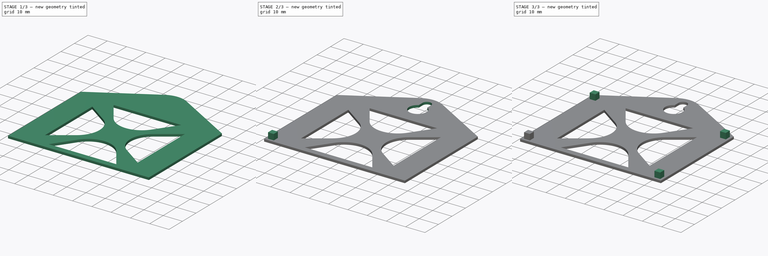
[diagram: build sequence overview — one tinted view per stage of 3, left to right]
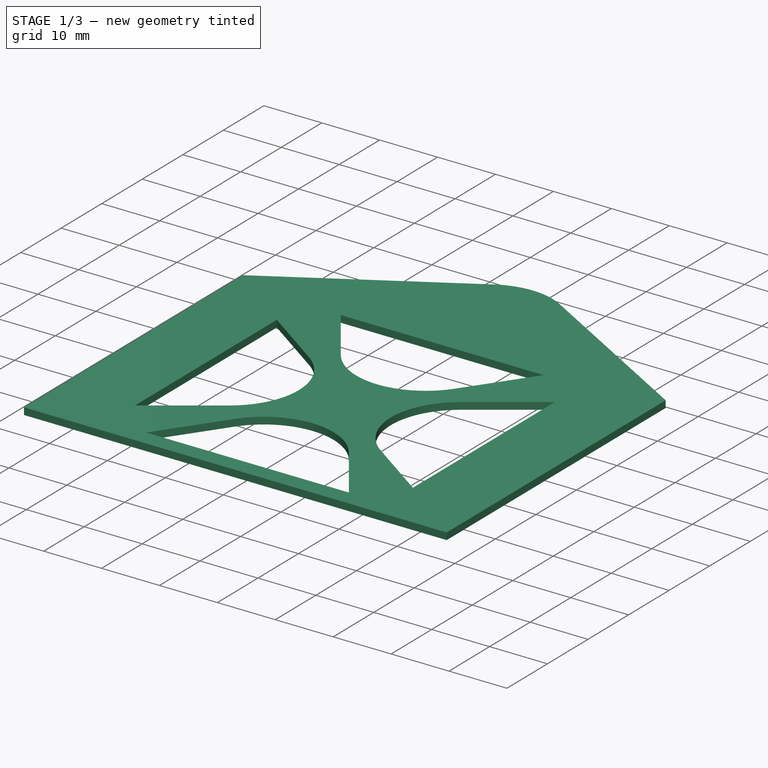
[diagram: stage 1 of 3 — iso view after this stage's code; geometry added in this stage tinted green]
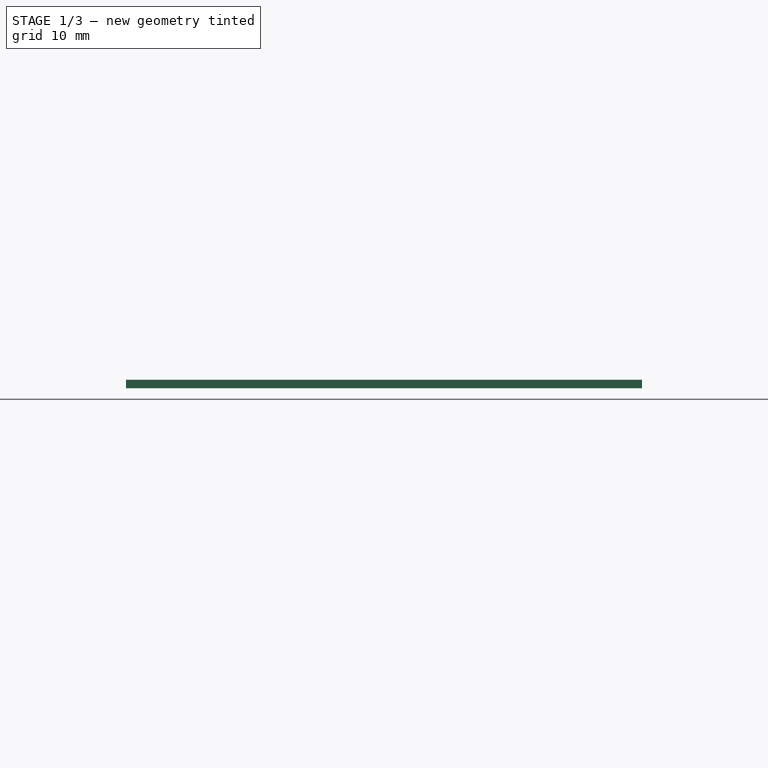
[diagram: stage 1 of 3 — front view after this stage's code; geometry added in this stage tinted green]
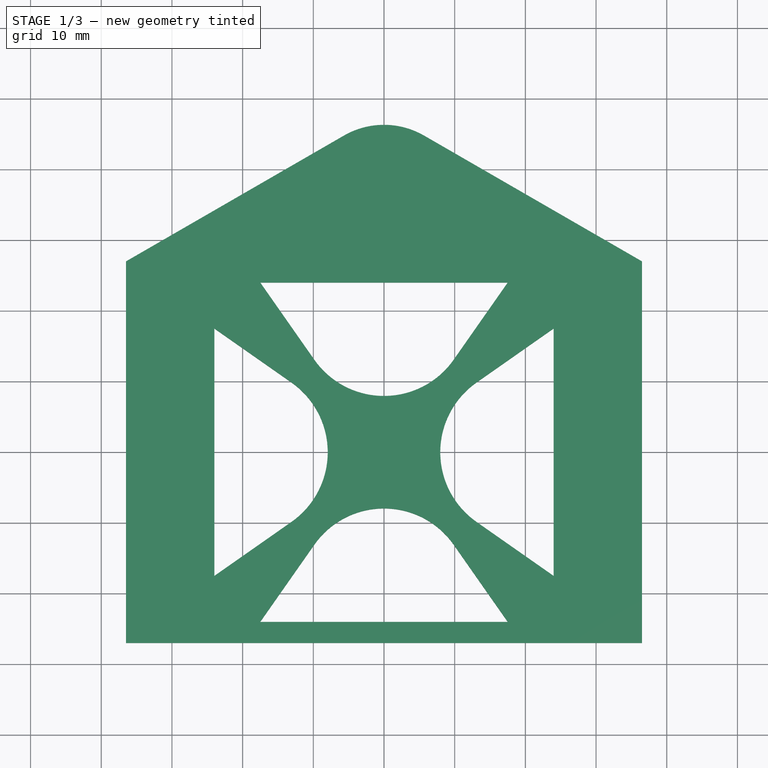
[diagram: stage 1 of 3 — top view after this stage's code; geometry added in this stage tinted green]
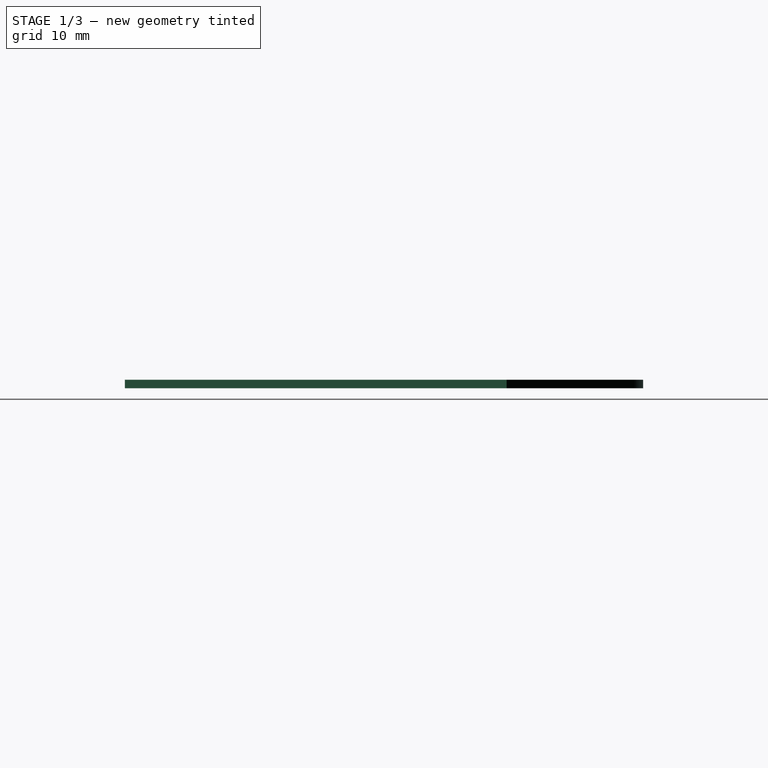
[diagram: stage 1 of 3 — right view after this stage's code; geometry added in this stage tinted green]
FCSTD DOCUMENT  (FreeCAD 0.18.3R)
Label: tapa_horno
License: All rights reserved
LicenseURL: http://en.wikipedia.org/wiki/All_rights_reserved
objects: Sketcher::SketchObject×4, PartDesign::Pad×2, PartDesign::Pocket×2, PartDesign::PolarPattern×2, PartDesign::Mirrored×2, PartDesign::Body×1
note: 17 computed .brp shape members not serialized (recipe doc carries the construction recipe); baked Part::Feature solids carry a one-line shape summary decoded from their .brp

FEATURE [Sketcher::SketchObject] Sketch
  MapMode = 5
  Support = -> [XY_Plane]
  sketch-geometry (7):
    g0: LineSegment [constr] StartX=-36.5 StartY=27 StartZ=0 EndX=36.5 EndY=27 EndZ=0
    g1: LineSegment StartX=36.5 StartY=27 StartZ=0 EndX=36.5 EndY=-27 EndZ=0
    g2: LineSegment StartX=36.5 StartY=-27 StartZ=0 EndX=-36.5 EndY=-27 EndZ=0
    g3: LineSegment StartX=-36.5 StartY=-27 StartZ=0 EndX=-36.5 EndY=27 EndZ=0
    g4: ArcOfCircle CenterX=0 CenterY=35 CenterZ=0 NormalX=0 NormalY=0 NormalZ=1 AngleXU=0 Radius=11.3218 StartAngle=1.0472 EndAngle=2.0944
    g5: LineSegment StartX=-36.5 StartY=27 StartZ=0 EndX=-5.6609 EndY=44.805 EndZ=0
    g6: LineSegment StartX=5.6609 StartY=44.805 StartZ=0 EndX=36.5 EndY=27 EndZ=0
  constraints (18):
    c: Coincident(g0,g1)
    c: Coincident(g1,g2)
    c: Coincident(g2,g3)
    c: Coincident(g3,g0)
    c: Horizontal(g0)
    c: Horizontal(g2)
    c: Vertical(g1)
    c: Vertical(g3)
    c: Symmetric(g0,g1,g-1)
    c: DistanceX(g0,g0) = 73
    c: DistanceY(g3,g3) = 54
    c: Coincident(g5,g3)
    c: Coincident(g6,g1)
    c: Tangent(g5,g4) = 1.5708
    c: Tangent(g6,g4) = 1.5708
    c: DistanceY(g-1,g4) = 35
    c: PointOnObject(g4,g-2)
    c: Angle(g4) = 1.0472
FEATURE [PartDesign::Pad] Pad
  Length = 1.2
  Length2 = 100
  Profile = -> Sketch
  Refine = true
  Type = 0
FEATURE [Sketcher::SketchObject] Sketch001
  MapMode = 5
  Placement = pos=(0,0,1.2) rot=(0,0,1;0rad)
  Support = -> [Pad]
  sketch-geometry (4):
    g0: LineSegment StartX=-24 StartY=17.5 StartZ=0 EndX=-24 EndY=-17.5 EndZ=0
    g1: ArcOfCircle CenterX=-20 CenterY=0 CenterZ=0 NormalX=0 NormalY=0 NormalZ=1 AngleXU=0 Radius=12.0409 StartAngle=5.32325 EndAngle=7.24312
    g2: LineSegment StartX=-13.0936 StartY=-9.86329 StartZ=0 EndX=-24 EndY=-17.5 EndZ=0
    g3: LineSegment StartX=-13.0936 StartY=9.86329 StartZ=0 EndX=-24 EndY=17.5 EndZ=0
  constraints (10):
    c: Symmetric(g0,g0,g-1)
    c: PointOnObject(g1,g-1)
    c: Coincident(g2,g0)
    c: Coincident(g3,g0)
    c: Tangent(g2,g1) = 1.5708
    c: Tangent(g3,g1) = -1.5708
    c: DistanceX(g1,g-1) = 20
    c: DistanceY(g0,g0) = 35
    c: Angle(g1) = 1.91986
    c: DistanceX(g0,g-1) = 24
FEATURE [PartDesign::Pocket] Pocket
  BaseFeature = -> Pad
  Length = 5
  Length2 = 100
  Profile = -> Sketch001
  Refine = true
  Type = 1
FEATURE [PartDesign::PolarPattern] PolarPattern
  Angle = 360
  Axis = -> Sketch001 [N_Axis]
  BaseFeature = -> Pocket
  Occurrences = 4
  Originals = -> [Pocket]
  Refine = true
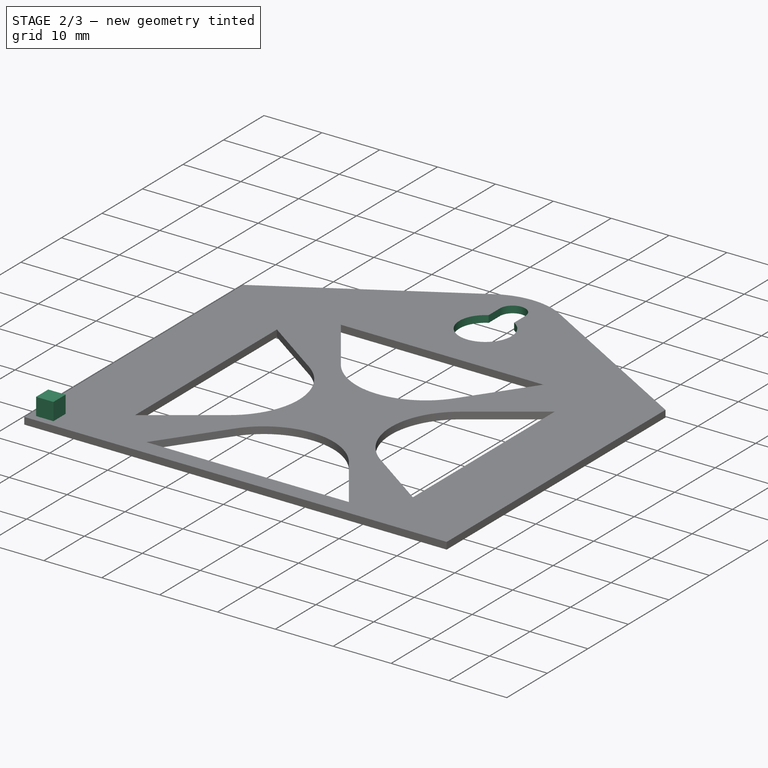
[diagram: stage 2 of 3 — iso view after this stage's code; geometry added in this stage tinted green]
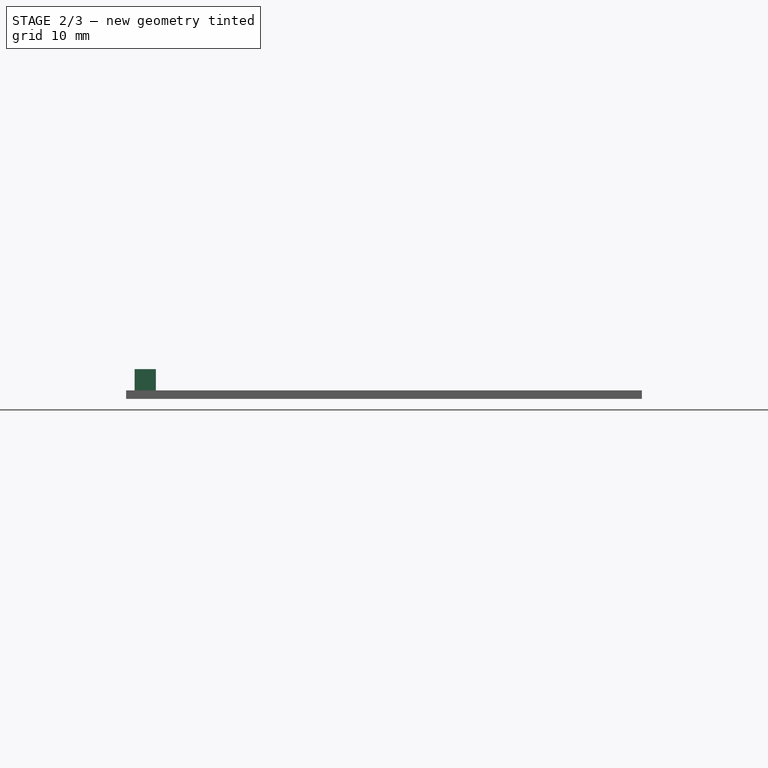
[diagram: stage 2 of 3 — front view after this stage's code; geometry added in this stage tinted green]
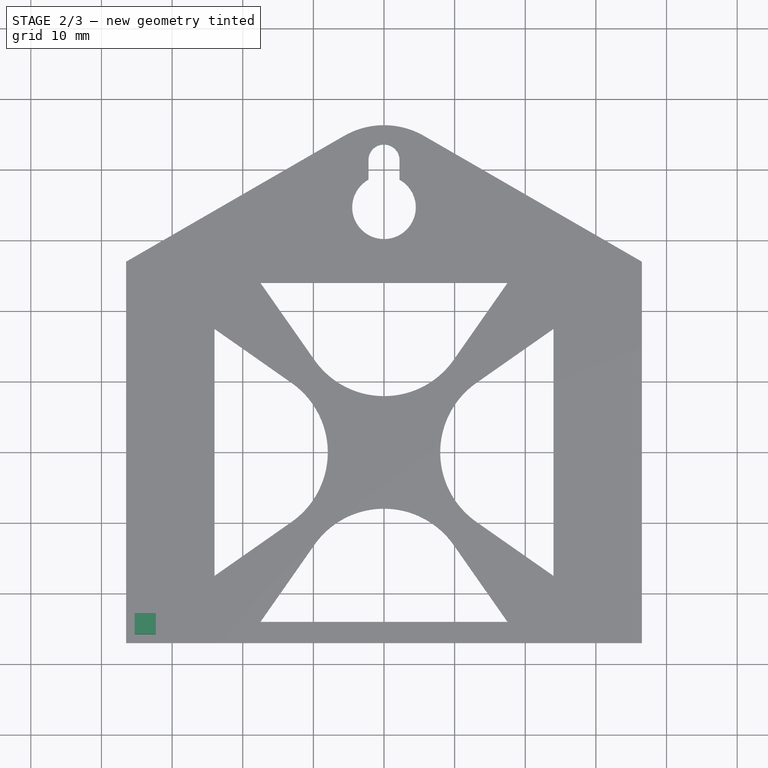
[diagram: stage 2 of 3 — top view after this stage's code; geometry added in this stage tinted green]
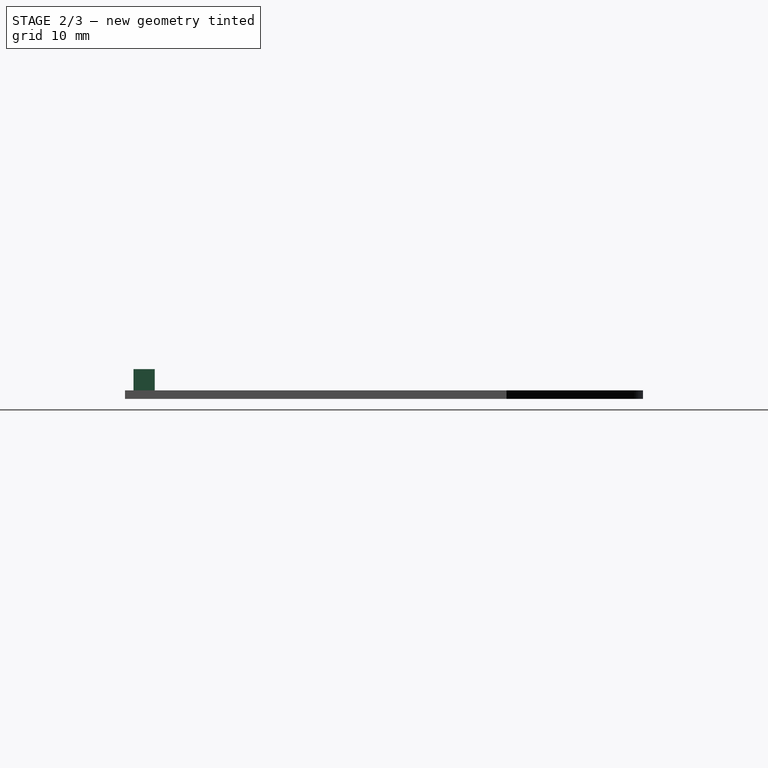
[diagram: stage 2 of 3 — right view after this stage's code; geometry added in this stage tinted green]
FEATURE [Sketcher::SketchObject] Sketch002
  ExternalGeometry = -> [PolarPattern]
  MapMode = 5
  Placement = pos=(0,0,1.2) rot=(0,0,1;0rad)
  Support = -> [PolarPattern]
  expr: Constraints[5] = Constraints.R + Constraints.R2
  expr: Constraints[2] = Constraints.R + 3.2mm
  sketch-geometry (7):
    g0: Circle [constr] CenterX=0 CenterY=34.7 CenterZ=0 NormalX=0 NormalY=0 NormalZ=1 AngleXU=0 Radius=4.5
    g1: Circle [constr] CenterX=0 CenterY=41.4 CenterZ=0 NormalX=0 NormalY=0 NormalZ=1 AngleXU=0 Radius=2.2
    g2: LineSegment StartX=-2.2 StartY=38.6256 StartZ=0 EndX=-2.2 EndY=41.4 EndZ=0
    g3: LineSegment StartX=2.2 StartY=38.6256 StartZ=0 EndX=2.2 EndY=41.4 EndZ=0
    g4: Circle [constr] CenterX=0 CenterY=41.4 CenterZ=0 NormalX=0 NormalY=0 NormalZ=1 AngleXU=0 Radius=2.2
    g5: ArcOfCircle CenterX=0 CenterY=41.4 CenterZ=0 NormalX=0 NormalY=0 NormalZ=1 AngleXU=0 Radius=2.2 StartAngle=6.28318 EndAngle=9.42479
    g6: ArcOfCircle CenterX=0 CenterY=34.7 CenterZ=0 NormalX=0 NormalY=0 NormalZ=1 AngleXU=0 Radius=4.5 StartAngle=2.08161 EndAngle=7.34317
  constraints (20):
    c: PointOnObject(g0,g-2)
    c: Radius(g0) = 4.5  'R'
    c: DistanceY(g-3,g0) = 7.7
    c: PointOnObject(g1,g-2)
    c: Radius(g1) = 2.2  'R2'
    c: DistanceY(g0,g1) = 6.7
    c: PointOnObject(g2,g0)
    c: PointOnObject(g2,g1)
    c: Vertical(g2)
    c: Tangent(g2,g1)
    c: Vertical(g3)
    c: Tangent(g3,g1)
    c: Coincident(g4,g1)
    c: PointOnObject(g3,g4)
    c: Coincident(g5,g1)
    c: Coincident(g5,g2)
    c: Coincident(g5,g3)
    c: Coincident(g6,g0)
    c: Coincident(g6,g2)
    c: Coincident(g6,g3)
FEATURE [PartDesign::Pocket] Pocket001
  BaseFeature = -> PolarPattern
  Length = 5
  Length2 = 100
  Profile = -> Sketch002
  Refine = true
  Type = 1
FEATURE [Sketcher::SketchObject] Sketch003
  ExternalGeometry = -> [Pocket001]
  MapMode = 5
  Placement = pos=(0,0,1.2) rot=(0,0,1;0rad)
  Support = -> [Pocket001]
  sketch-geometry (4):
    g0: LineSegment StartX=-35.3 StartY=-22.8 StartZ=0 EndX=-32.3 EndY=-22.8 EndZ=0
    g1: LineSegment StartX=-32.3 StartY=-22.8 StartZ=0 EndX=-32.3 EndY=-25.8 EndZ=0
    g2: LineSegment StartX=-32.3 StartY=-25.8 StartZ=0 EndX=-35.3 EndY=-25.8 EndZ=0
    g3: LineSegment StartX=-35.3 StartY=-25.8 StartZ=0 EndX=-35.3 EndY=-22.8 EndZ=0
  constraints (12):
    c: Coincident(g0,g1)
    c: Coincident(g1,g2)
    c: Coincident(g2,g3)
    c: Coincident(g3,g0)
    c: Horizontal(g0)
    c: Horizontal(g2)
    c: Vertical(g1)
    c: Vertical(g3)
    c: Equal(g1,g0)
    c: DistanceY(g-3,g2) = 1.2
    c: DistanceX(g-3,g2) = 1.2
    c: DistanceY(g1,g1) = 3
FEATURE [PartDesign::Pad] Pad001
  BaseFeature = -> Pocket001
  Length = 3
  Length2 = 100
  Profile = -> Sketch003
  Refine = true
  Type = 0
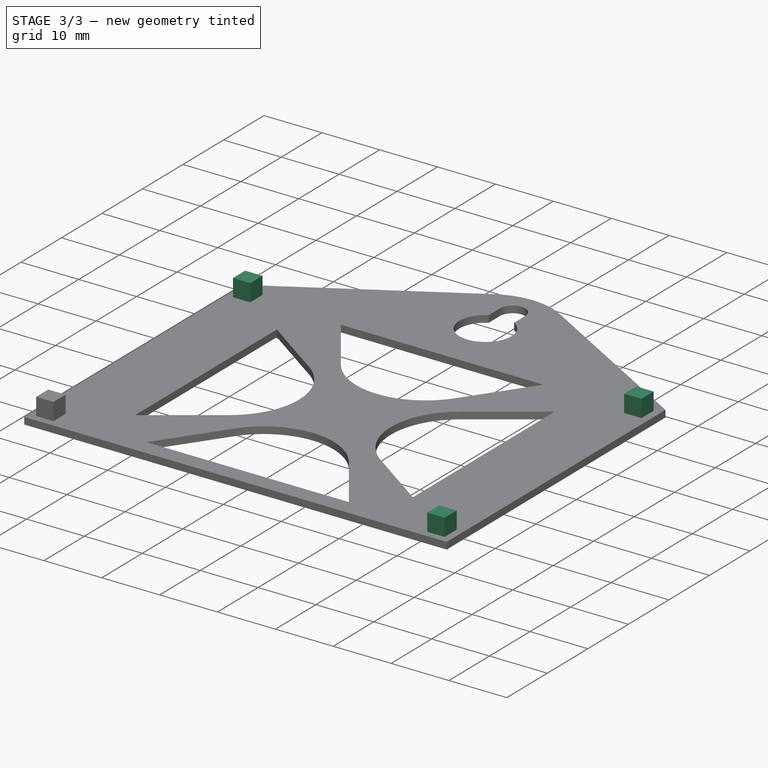
[diagram: stage 3 of 3 — iso view after this stage's code; geometry added in this stage tinted green]
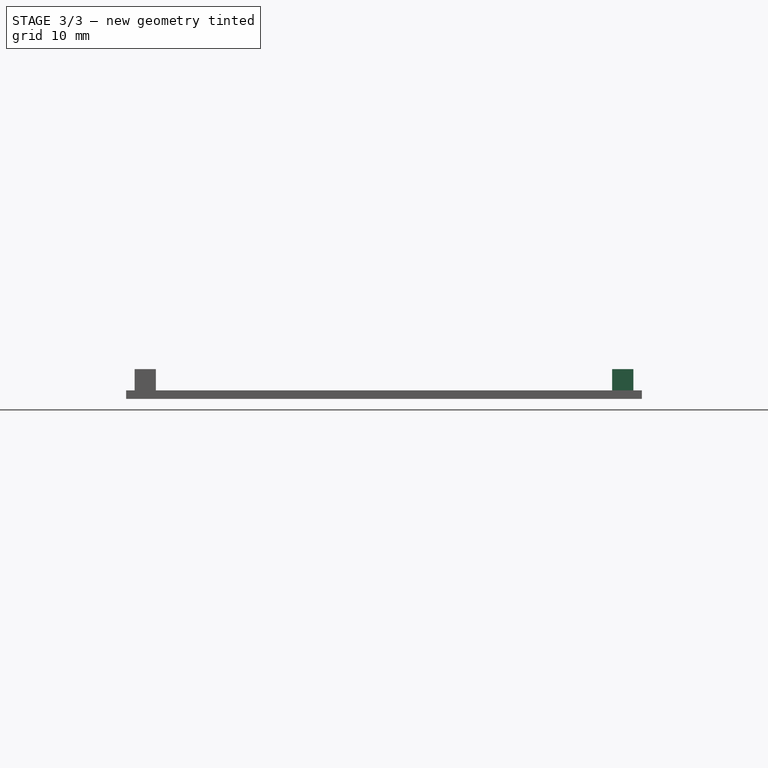
[diagram: stage 3 of 3 — front view after this stage's code; geometry added in this stage tinted green]
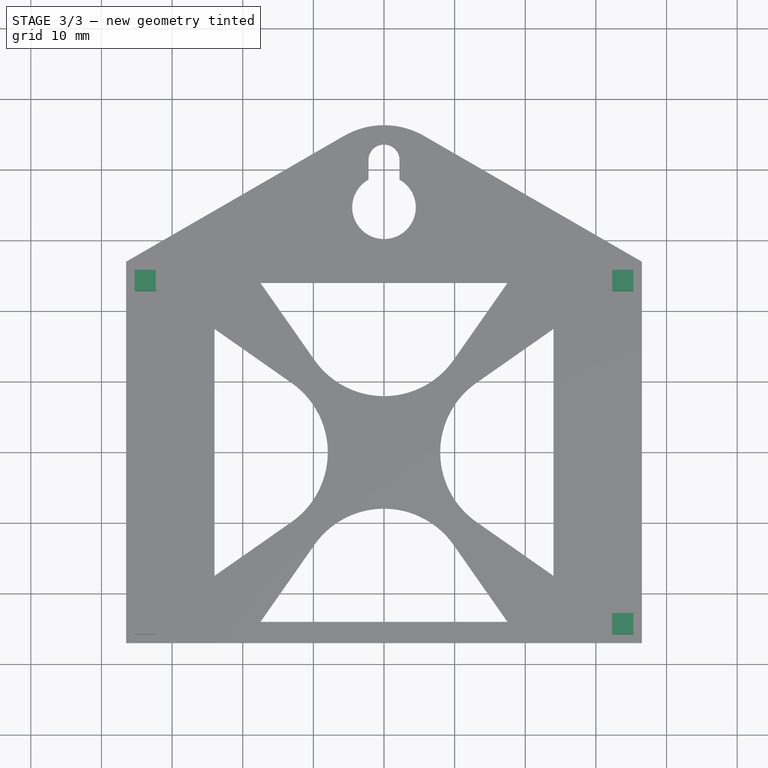
[diagram: stage 3 of 3 — top view after this stage's code; geometry added in this stage tinted green]
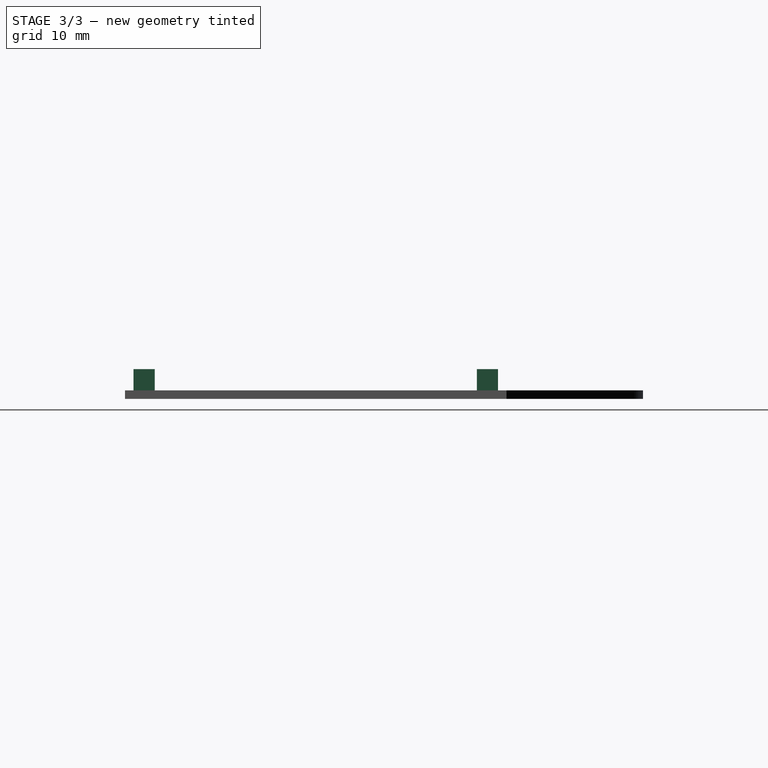
[diagram: stage 3 of 3 — right view after this stage's code; geometry added in this stage tinted green]
FEATURE [PartDesign::PolarPattern] PolarPattern001
  Angle = 360
  Axis = -> Sketch003 [N_Axis]
  BaseFeature = -> Pad001
  Occurrences = 2
  Originals = -> [Pad001]
  Refine = true
FEATURE [PartDesign::Mirrored] Mirrored
  BaseFeature = -> PolarPattern001
  MirrorPlane = -> YZ_Plane
  Originals = -> [Pad001]
  Refine = true
FEATURE [PartDesign::Mirrored] Mirrored001
  BaseFeature = -> Mirrored
  MirrorPlane = -> XZ_Plane
  Originals = -> [Pad001]
  Refine = true
FEATURE [PartDesign::Body] Body
  Group = -> [Sketch,Pad,Sketch001,Pocket,PolarPattern,Sketch002,Pocket001,Sketch003,Pad001,PolarPattern001,Mirrored,Mirrored001]
  Origin = -> Origin
  Tip = -> Mirrored001
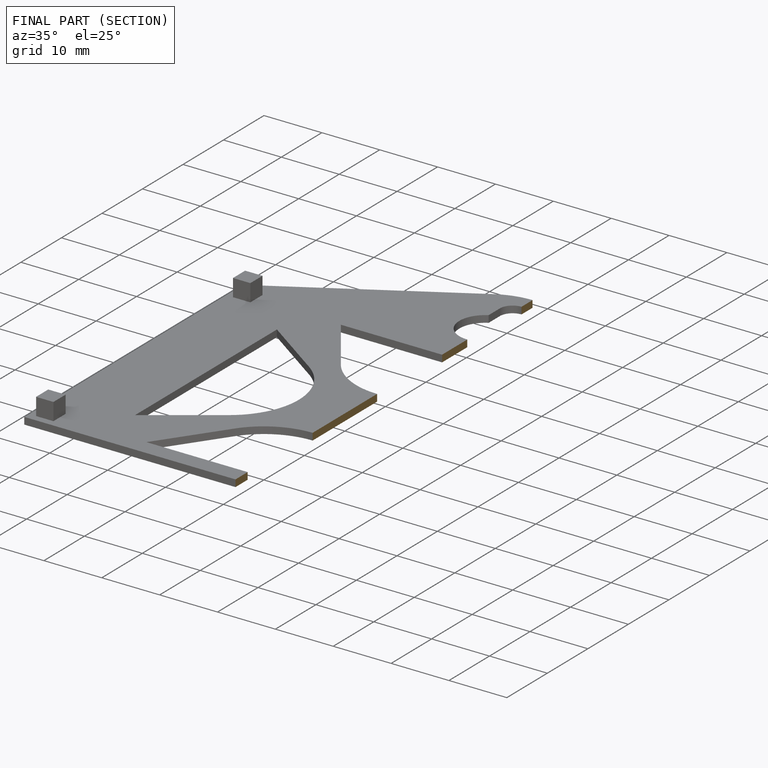
[diagram: finished part — half-section view (interior)]
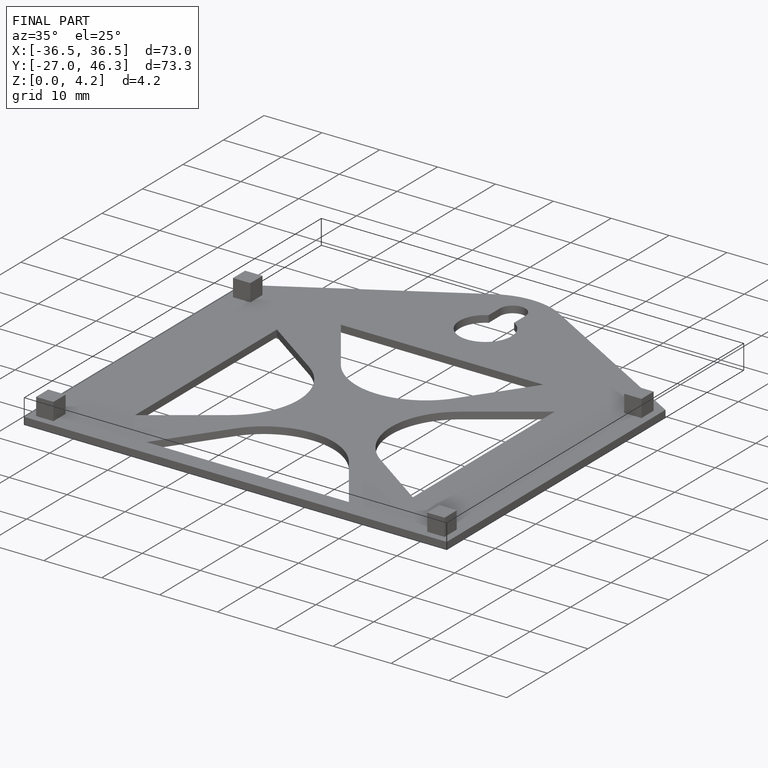
[diagram: finished part — iso view with bounding-box wireframe]
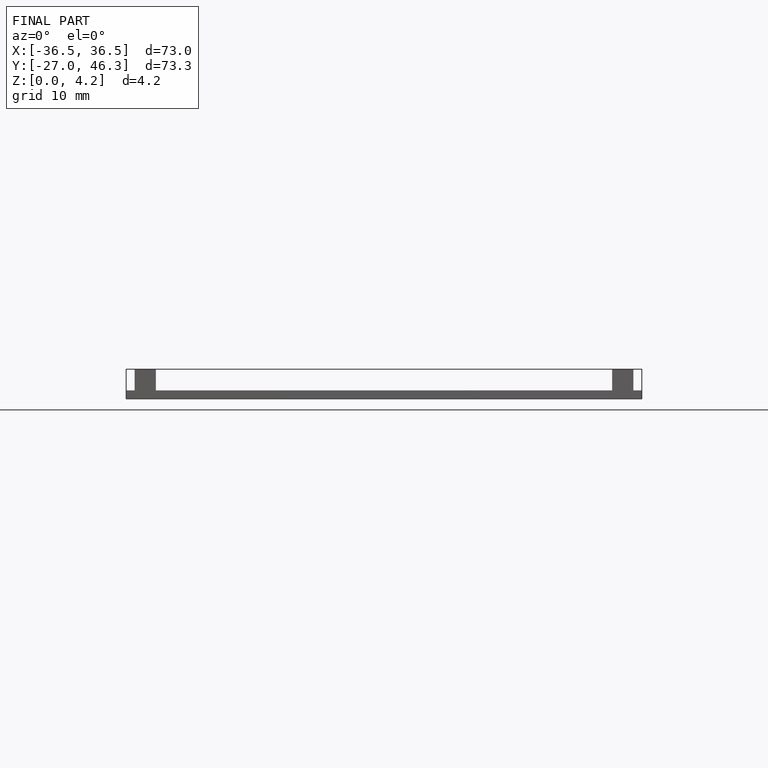
[diagram: finished part — front view with bounding-box wireframe]
